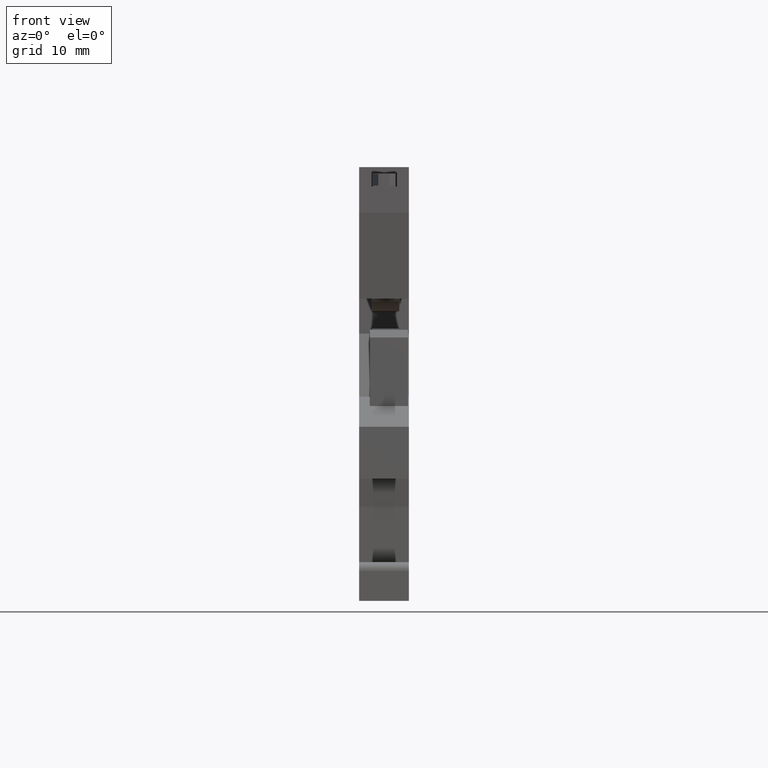
[diagram: clean part render]
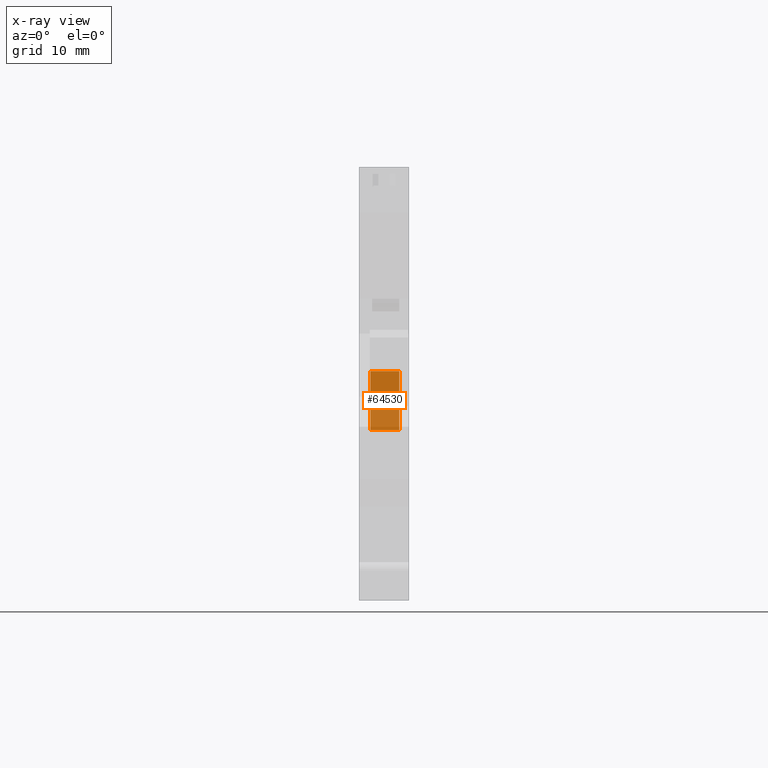
[diagram: x-ray — body ghosted, one internal face saturated and labeled with its STEP entity id]
A machine part, front view, then the same camera in x-ray: the body is ghosted and one INTERNAL B-rep face — a face not visible from any outside direction — is saturated and labeled: STEP entity #64530.
In plain terms, the highlighted planar face has unit normal (0, -0.9397, 0.342).
Its self-contained STEP definition (entity closure, byte-faithful):
#63110=CARTESIAN_POINT('',(52.1822826987621,17.9377122879973,
-0.999999922386012));
#63120=VERTEX_POINT('',#63110);
#63150=CARTESIAN_POINT('',(61.1542299530322,56.7994854210308,
-0.999999922435697));
#63160=DIRECTION('',(0.224951054037144,0.974370064856048,
-1.24572795580338E-12));
#63170=VECTOR('',#63160,1.);
#63180=LINE('',#63150,#63170);
#63190=CARTESIAN_POINT('',(53.6444644493473,24.2711172735717,
-0.999999922394109));
#63200=VERTEX_POINT('',#63190);
#63210=EDGE_CURVE('',#63120,#63200,#63180,.T.);
#63770=CARTESIAN_POINT('',(53.6444644518747,24.2711172847221,
-3.99999992240187));
#63780=VERTEX_POINT('',#63770);
#63810=CARTESIAN_POINT('',(61.1542299529759,56.7994854209895,
-3.99999992244345));
#63820=DIRECTION('',(-0.224951054037144,-0.974370064856048,
1.245755711379E-12));
#63830=VECTOR('',#63820,1.);
#63840=LINE('',#63810,#63830);
#63850=CARTESIAN_POINT('',(52.1822826999823,17.9377122934856,
-3.99999992239377));
#63860=VERTEX_POINT('',#63850);
#63870=EDGE_CURVE('',#63780,#63860,#63840,.T.);
#64210=CARTESIAN_POINT('',(52.1822827004501,17.9377122955895,
-5.14999994626469));
#64220=DIRECTION('',(4.06743137793168E-10,1.82944567144207E-9,-1.));
#64230=VECTOR('',#64220,1.);
#64240=LINE('',#64210,#64230);
#64250=EDGE_CURVE('',#63120,#63860,#64240,.T.);
#64370=CARTESIAN_POINT('',(53.2613684560631,22.6117462188652,
-2.80500005835211));
#64380=DIRECTION('',(-0.974370064856047,0.224951054037144,
1.52173945433032E-11));
#64390=DIRECTION('',(-0.224951054037144,-0.974370064856048,
-3.81108716180665E-9));
#64400=AXIS2_PLACEMENT_3D('',#64370,#64380,#64390);
#64410=PLANE('',#64400);
#64420=CARTESIAN_POINT('',(53.6444644528436,24.2711172889965,
-5.14999994634341));
#64430=DIRECTION('',(-8.42480700367736E-10,-3.71683241396381E-9,1.));
#64440=VECTOR('',#64430,1.);
#64450=LINE('',#64420,#64440);
#64460=EDGE_CURVE('',#63780,#63200,#64450,.T.);
#64470=ORIENTED_EDGE('',*,*,#64460,.F.);
#64480=ORIENTED_EDGE('',*,*,#63210,.T.);
#64490=ORIENTED_EDGE('',*,*,#64250,.F.);
#64500=ORIENTED_EDGE('',*,*,#63870,.T.);
#64510=EDGE_LOOP('',(#64500,#64490,#64480,#64470));
#64520=FACE_OUTER_BOUND('',#64510,.T.);
#64530=ADVANCED_FACE('',(#64520),#64410,.T.);